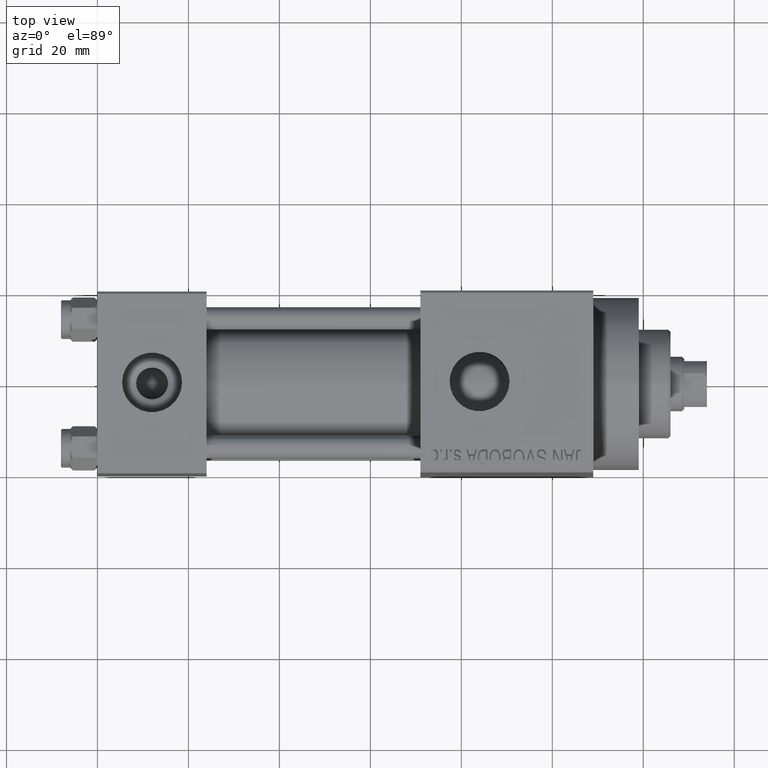
[diagram: clean part render]
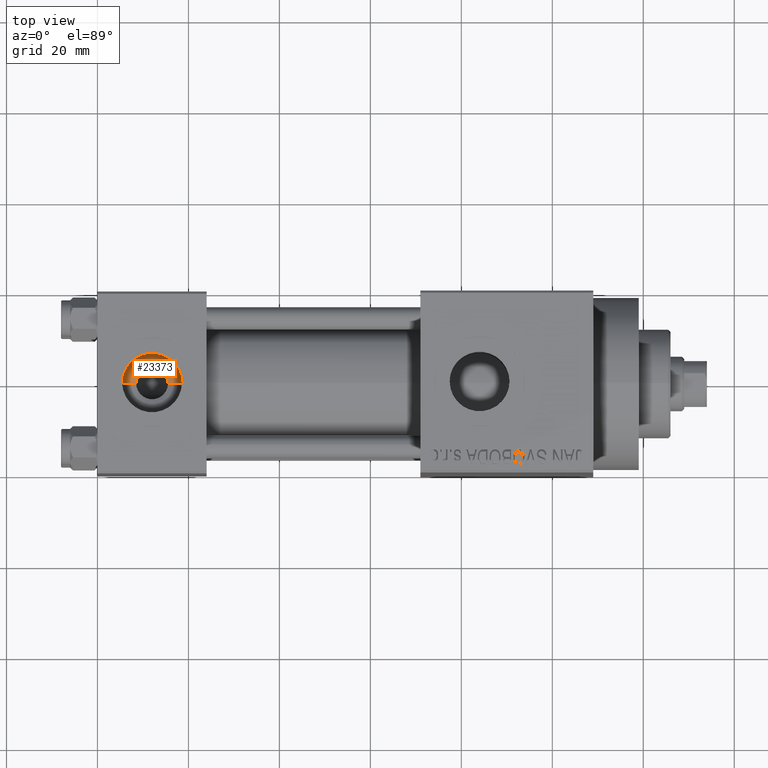
[diagram: same view with one face highlighted and labeled with its STEP entity id]
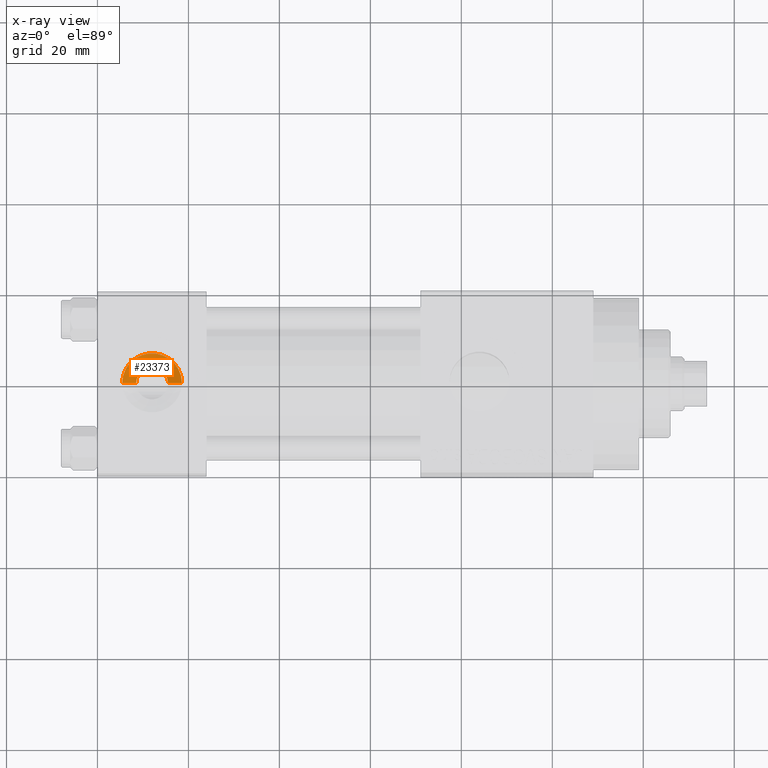
[diagram: x-ray of the same camera — body ghosted, the highlighted face saturated]
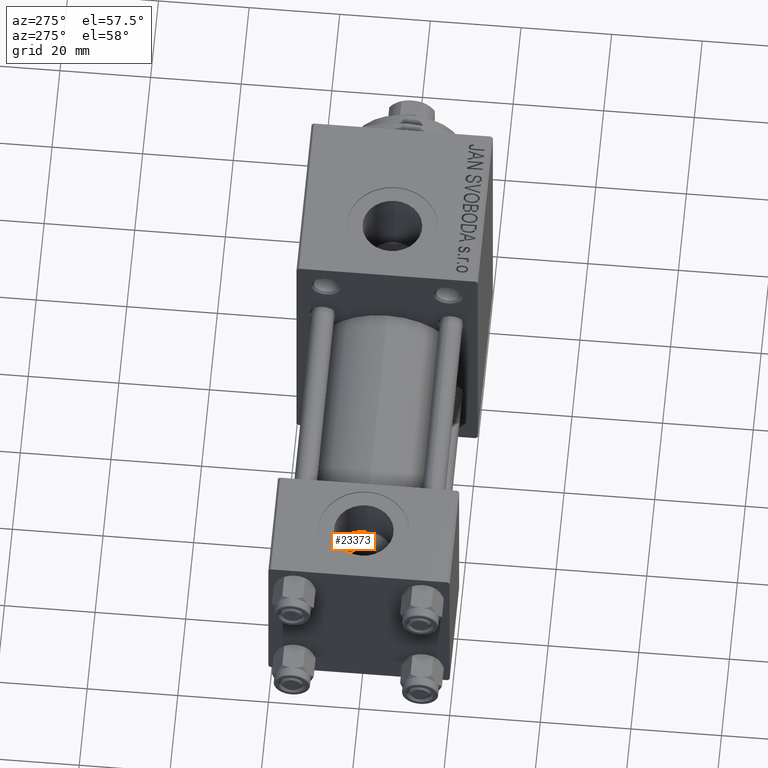
[diagram: same view with one face highlighted and labeled with its STEP entity id]
A machine part, top view. The second image highlights one B-rep face of the part: STEP entity #23373.
The next image is the same camera in x-ray: the body ghosted, the highlighted face saturated — about 0% of this face is hidden behind the body in this view.
A second angle (auxiliary view) of the same face is appended — the face is thin or edge-on in the first view.
In plain terms, the highlighted conical surface has half-angle 60.452 deg.
Its self-contained STEP definition (entity closure, byte-faithful):
#2752 = VERTEX_POINT ( 'NONE', #4804 ) ;
#3222 = VECTOR ( 'NONE', #11653, 1000.000000000000000 ) ;
#4804 = CARTESIAN_POINT ( 'NONE',  ( 18.57999999999999829, 1.540743955509788682E-30, 9.165987261146492315 ) ) ;
#5756 = EDGE_CURVE ( 'NONE', #14667, #35160, #14803, .T. ) ;
#6826 = DIRECTION ( 'NONE',  ( 1.000000000000000000, 0.000000000000000000, 0.000000000000000000 ) ) ;
#7161 = EDGE_CURVE ( 'NONE', #11501, #2752, #37802, .T. ) ;
#9858 = AXIS2_PLACEMENT_3D ( 'NONE', #13487, #46823, #6826 ) ;
#10182 = AXIS2_PLACEMENT_3D ( 'NONE', #21700, #10773, #10296 ) ;
#10296 = DIRECTION ( 'NONE',  ( 1.000000000000000000, 0.000000000000000000, 0.000000000000000000 ) ) ;
#10658 = EDGE_LOOP ( 'NONE', ( #38425, #28838, #27571, #38899 ) ) ;
#10773 = DIRECTION ( 'NONE',  ( 0.000000000000000000, 0.000000000000000000, 1.000000000000000000 ) ) ;
#11501 = VERTEX_POINT ( 'NONE', #19512 ) ;
#11653 = DIRECTION ( 'NONE',  ( 0.8699429503561852961, 0.000000000000000000, 0.4931523731318503412 ) ) ;
#11966 = CONICAL_SURFACE ( 'NONE', #19461, 3.499999999999999556, 1.055086625138361267 ) ;
#12431 = CIRCLE ( 'NONE', #10182, 3.499999999999999556 ) ;
#13036 = CARTESIAN_POINT ( 'NONE',  ( 5.420000000000000817, 8.058175938389596335E-16, 9.165987261146492315 ) ) ;
#13487 = CARTESIAN_POINT ( 'NONE',  ( 12.00000000000000000, 1.540743955509788682E-30, 9.165987261146492315 ) ) ;
#14667 = VERTEX_POINT ( 'NONE', #42669 ) ;
#14680 = EDGE_CURVE ( 'NONE', #11501, #14667, #12431, .T. ) ;
#14803 = LINE ( 'NONE', #29089, #42671 ) ;
#15481 = DIRECTION ( 'NONE',  ( 0.000000000000000000, 0.000000000000000000, 1.000000000000000000 ) ) ;
#19059 = DIRECTION ( 'NONE',  ( 1.000000000000000000, 0.000000000000000000, 0.000000000000000000 ) ) ;
#19461 = AXIS2_PLACEMENT_3D ( 'NONE', #19745, #15481, #19059 ) ;
#19512 = CARTESIAN_POINT ( 'NONE',  ( 15.50000000000000000, 1.540743955509788682E-30, 7.419999999999996376 ) ) ;
#19745 = CARTESIAN_POINT ( 'NONE',  ( 12.00000000000000000, 1.540743955509788682E-30, 7.419999999999996376 ) ) ;
#21699 = DIRECTION ( 'NONE',  ( -0.8699429503561852961, 1.065372849594507103E-16, 0.4931523731318503412 ) ) ;
#21700 = CARTESIAN_POINT ( 'NONE',  ( 12.00000000000000000, 1.540743955509788682E-30, 7.419999999999996376 ) ) ;
#23373 = ADVANCED_FACE ( 'NONE', ( #40958 ), #11966, .F. ) ;
#27571 = ORIENTED_EDGE ( 'NONE', *, *, #7161, .T. ) ;
#28838 = ORIENTED_EDGE ( 'NONE', *, *, #14680, .F. ) ;
#29089 = CARTESIAN_POINT ( 'NONE',  ( 8.500000000000000000, 4.286263797015751879E-16, 7.419999999999996376 ) ) ;
#33781 = CARTESIAN_POINT ( 'NONE',  ( 15.50000000000000000, 1.540743955509788682E-30, 7.419999999999996376 ) ) ;
#35160 = VERTEX_POINT ( 'NONE', #13036 ) ;
#37802 = LINE ( 'NONE', #33781, #3222 ) ;
#37943 = CIRCLE ( 'NONE', #9858, 6.579999999999999183 ) ;
#38425 = ORIENTED_EDGE ( 'NONE', *, *, #5756, .F. ) ;
#38899 = ORIENTED_EDGE ( 'NONE', *, *, #41164, .F. ) ;
#40958 = FACE_OUTER_BOUND ( 'NONE', #10658, .T. ) ;
#41164 = EDGE_CURVE ( 'NONE', #35160, #2752, #37943, .T. ) ;
#42669 = CARTESIAN_POINT ( 'NONE',  ( 8.500000000000000000, 4.286263797015752865E-16, 7.419999999999996376 ) ) ;
#42671 = VECTOR ( 'NONE', #21699, 1000.000000000000000 ) ;
#46823 = DIRECTION ( 'NONE',  ( -0.000000000000000000, -0.000000000000000000, -1.000000000000000000 ) ) ;